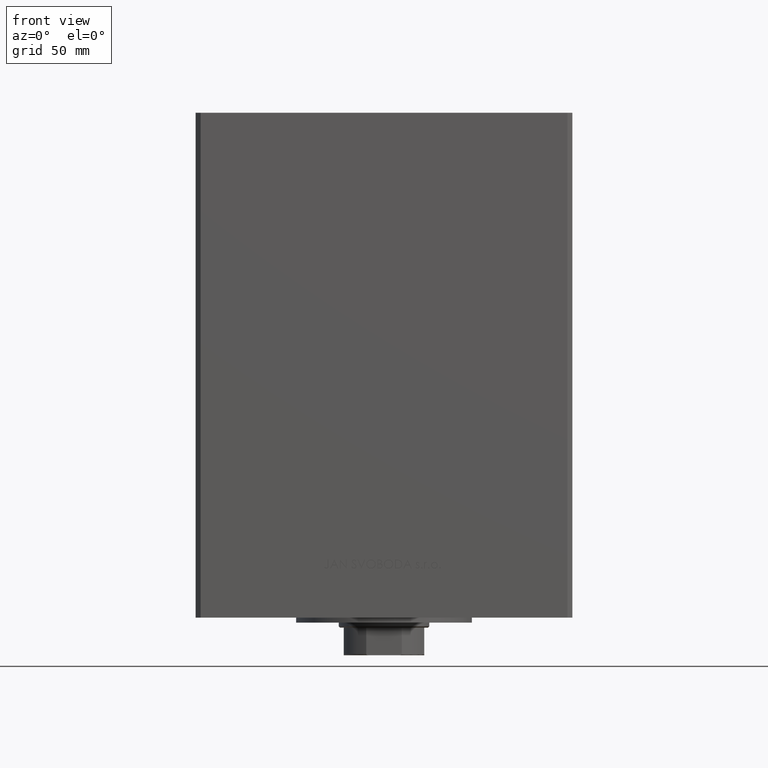
[diagram: clean part render]
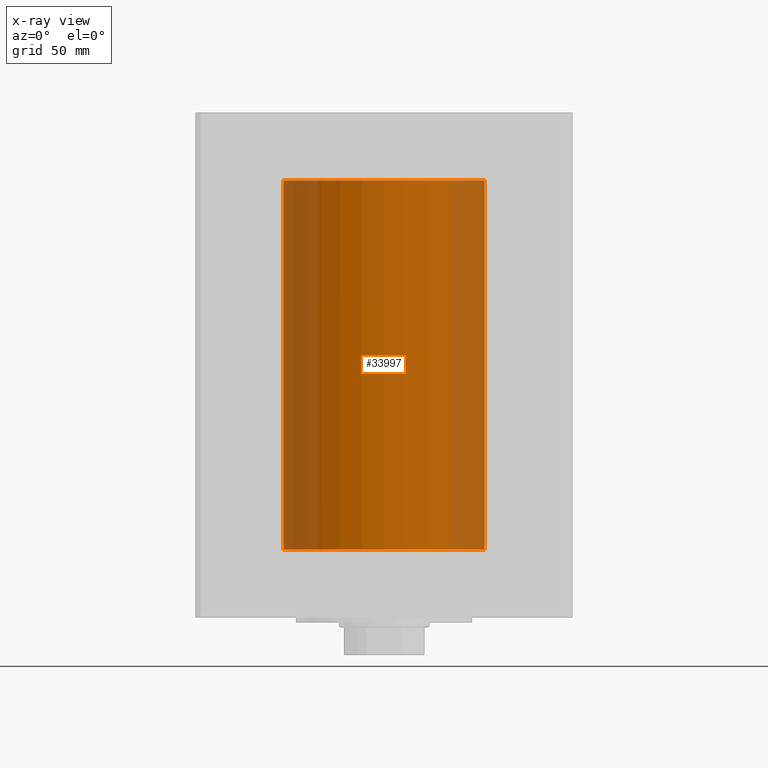
[diagram: x-ray — body ghosted, one internal face saturated and labeled with its STEP entity id]
A machine part, front view, then the same camera in x-ray: the body is ghosted and one INTERNAL B-rep face — a face not visible from any outside direction — is saturated and labeled: STEP entity #33997.
In plain terms, the highlighted cylindrical surface (partial cylindrical patch) has radius 40 mm, axis along (-0, -0, -1).
Its self-contained STEP definition (entity closure, byte-faithful):
#864 = CARTESIAN_POINT ( 'NONE',  ( 0.000000000000000000, 0.000000000000000000, 147.0000000000000000 ) ) ;
#2509 = EDGE_CURVE ( 'NONE', #19660, #8515, #13331, .T. ) ;
#4330 = FACE_OUTER_BOUND ( 'NONE', #18387, .T. ) ;
#6810 = EDGE_CURVE ( 'NONE', #41992, #31148, #41068, .T. ) ;
#7085 = CIRCLE ( 'NONE', #10260, 40.00000000000000000 ) ;
#7175 = CARTESIAN_POINT ( 'NONE',  ( 40.00000000000000000, 4.898587196589413026E-15, 147.0000000000000000 ) ) ;
#8515 = VERTEX_POINT ( 'NONE', #16885 ) ;
#8647 = DIRECTION ( 'NONE',  ( -0.000000000000000000, -0.000000000000000000, -1.000000000000000000 ) ) ;
#8829 = VECTOR ( 'NONE', #22274, 1000.000000000000000 ) ;
#9190 = DIRECTION ( 'NONE',  ( -0.000000000000000000, 0.000000000000000000, 1.000000000000000000 ) ) ;
#10260 = AXIS2_PLACEMENT_3D ( 'NONE', #35434, #9190, #16618 ) ;
#10948 = VECTOR ( 'NONE', #8647, 1000.000000000000000 ) ;
#13331 = LINE ( 'NONE', #28189, #10948 ) ;
#13867 = ORIENTED_EDGE ( 'NONE', *, *, #2509, .F. ) ;
#14077 = EDGE_CURVE ( 'NONE', #8515, #31148, #7085, .T. ) ;
#14883 = CARTESIAN_POINT ( 'NONE',  ( 0.000000000000000000, 0.000000000000000000, 147.0000000000000000 ) ) ;
#16618 = DIRECTION ( 'NONE',  ( 1.000000000000000000, 0.000000000000000000, 0.000000000000000000 ) ) ;
#16885 = CARTESIAN_POINT ( 'NONE',  ( -40.00000000000000000, 0.000000000000000000, 0.000000000000000000 ) ) ;
#17103 = AXIS2_PLACEMENT_3D ( 'NONE', #864, #19922, #27353 ) ;
#17685 = CARTESIAN_POINT ( 'NONE',  ( -40.00000000000000000, 0.000000000000000000, 147.0000000000000000 ) ) ;
#18387 = EDGE_LOOP ( 'NONE', ( #38996, #42432, #29104, #13867 ) ) ;
#19660 = VERTEX_POINT ( 'NONE', #17685 ) ;
#19922 = DIRECTION ( 'NONE',  ( -0.000000000000000000, -0.000000000000000000, -1.000000000000000000 ) ) ;
#22274 = DIRECTION ( 'NONE',  ( -0.000000000000000000, -0.000000000000000000, -1.000000000000000000 ) ) ;
#22305 = AXIS2_PLACEMENT_3D ( 'NONE', #14883, #30241, #33461 ) ;
#23894 = CIRCLE ( 'NONE', #22305, 40.00000000000000000 ) ;
#24328 = CARTESIAN_POINT ( 'NONE',  ( 40.00000000000000000, 4.898587196589413026E-15, 0.000000000000000000 ) ) ;
#24418 = EDGE_CURVE ( 'NONE', #19660, #41992, #23894, .T. ) ;
#27353 = DIRECTION ( 'NONE',  ( -1.000000000000000000, 0.000000000000000000, 0.000000000000000000 ) ) ;
#28189 = CARTESIAN_POINT ( 'NONE',  ( -40.00000000000000000, 0.000000000000000000, 147.0000000000000000 ) ) ;
#29104 = ORIENTED_EDGE ( 'NONE', *, *, #14077, .F. ) ;
#30241 = DIRECTION ( 'NONE',  ( -0.000000000000000000, 0.000000000000000000, 1.000000000000000000 ) ) ;
#31148 = VERTEX_POINT ( 'NONE', #24328 ) ;
#33461 = DIRECTION ( 'NONE',  ( 1.000000000000000000, 0.000000000000000000, 0.000000000000000000 ) ) ;
#33997 = ADVANCED_FACE ( 'NONE', ( #4330 ), #46615, .F. ) ;
#35434 = CARTESIAN_POINT ( 'NONE',  ( 0.000000000000000000, 0.000000000000000000, 0.000000000000000000 ) ) ;
#38996 = ORIENTED_EDGE ( 'NONE', *, *, #24418, .T. ) ;
#41068 = LINE ( 'NONE', #7175, #8829 ) ;
#41992 = VERTEX_POINT ( 'NONE', #44779 ) ;
#42432 = ORIENTED_EDGE ( 'NONE', *, *, #6810, .T. ) ;
#44779 = CARTESIAN_POINT ( 'NONE',  ( 40.00000000000000000, 4.898587196589413026E-15, 147.0000000000000000 ) ) ;
#46615 = CYLINDRICAL_SURFACE ( 'NONE', #17103, 40.00000000000000000 ) ;